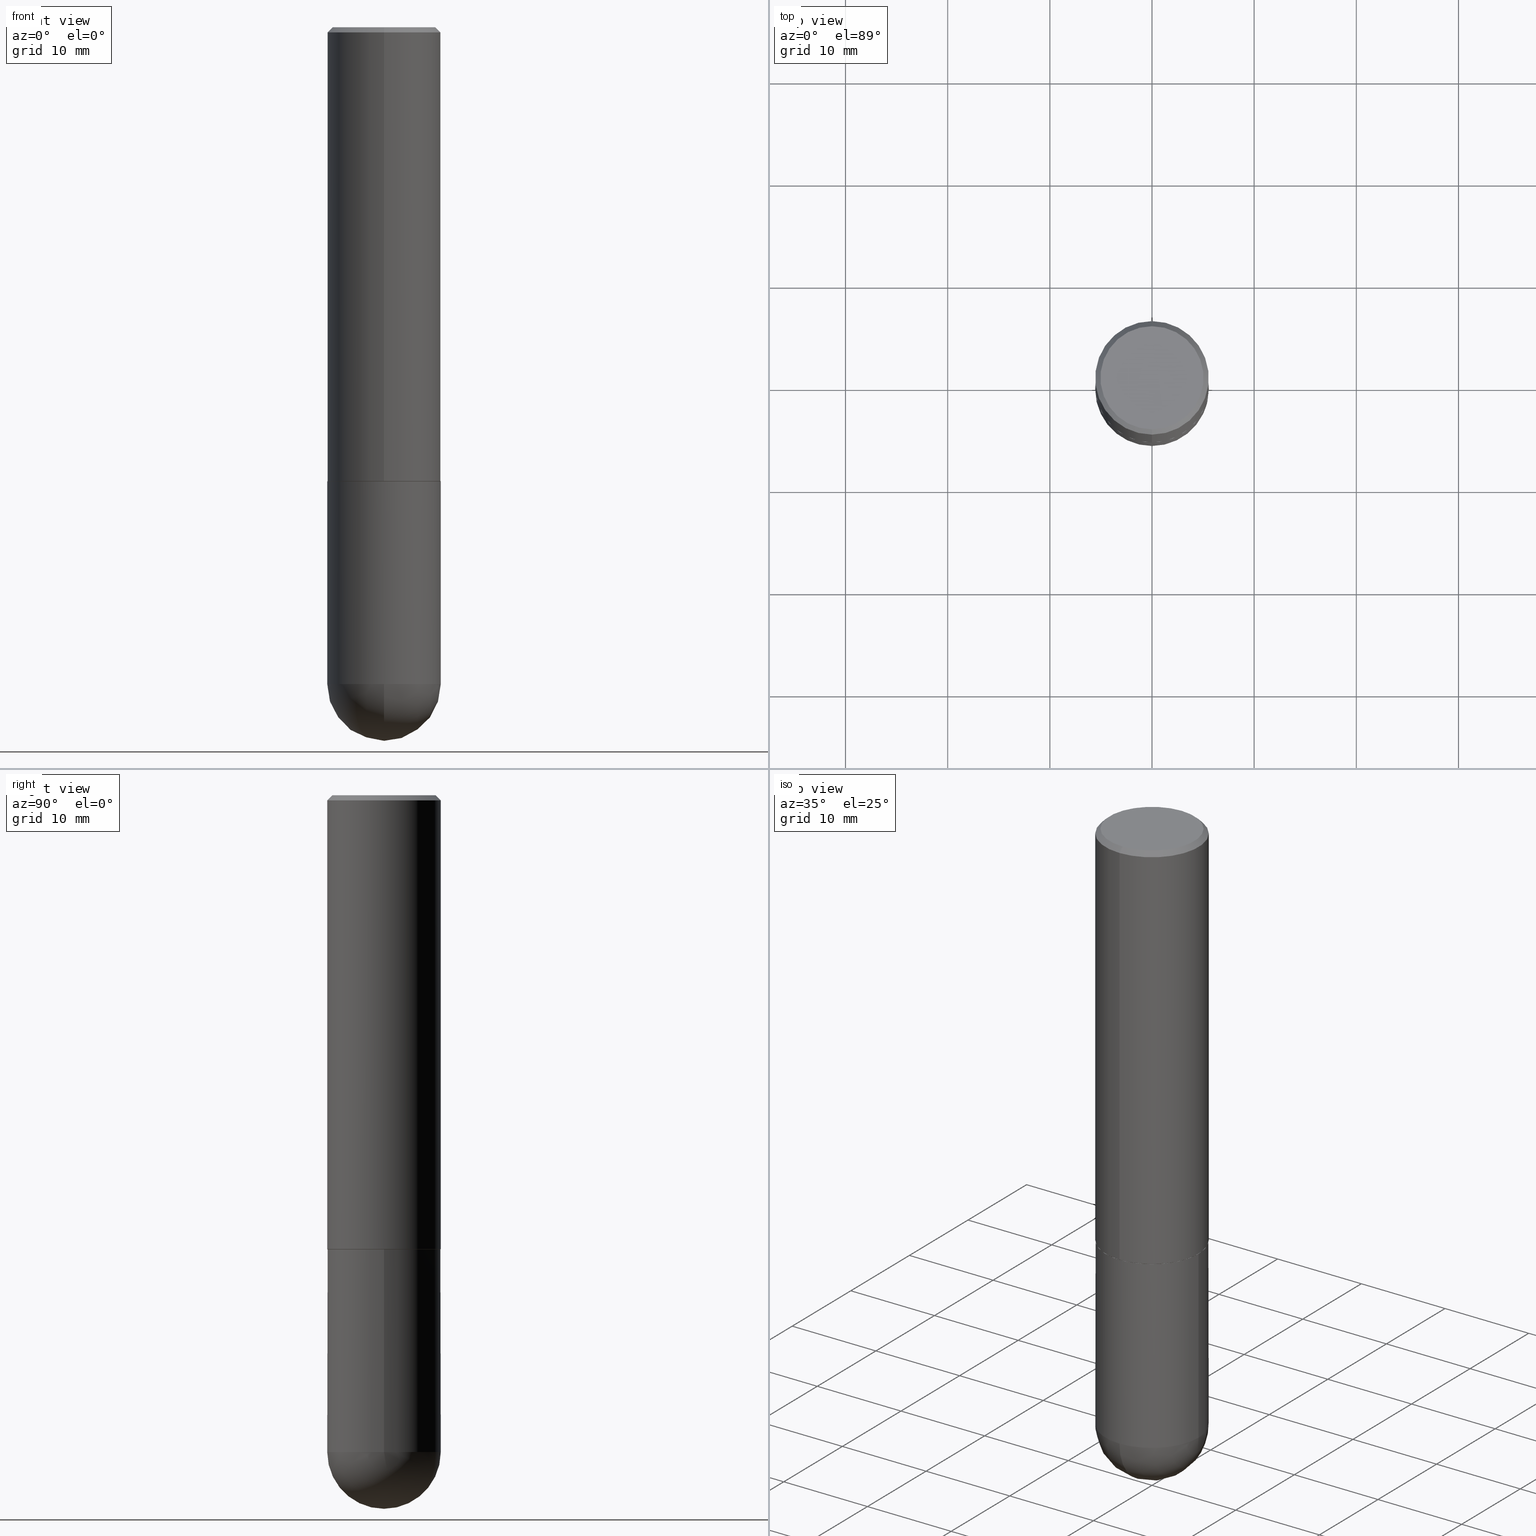
[diagram: canonical four-view strip — front | top / right | iso, engineering-drawing reading convention]
A machine part, canonical four-view strip (front | top / right | iso — engineering-drawing reading convention). The complete STEP part file that produces these views, byte-faithful:
ISO-10303-21;
HEADER;
FILE_DESCRIPTION (( 'STEP AP203' ),
    '1' );
FILE_NAME ('30498.STEP',
    '2024-02-21T16:39:10',
    ( '' ),
    ( '' ),
    'SwSTEP 2.0',
    'SolidWorks 2023',
    '' );
FILE_SCHEMA (( 'CONFIG_CONTROL_DESIGN' ));
ENDSEC;

DATA;
#1 = DIRECTION ( 'NONE',  ( -6.982962677686265922E-15, -1.000000000000000000, 3.492862791899308860E-15 ) ) ;
#2 = AXIS2_PLACEMENT_3D ( 'NONE', #355, #258, #34 ) ;
#3 = ORIENTED_EDGE ( 'NONE', *, *, #5, .F. ) ;
#4 = CARTESIAN_POINT ( 'NONE',  ( -0.2187499999999999445, 1.554312234475218762E-15, -1.076017050993260482E-29 ) ) ;
#5 = EDGE_CURVE ( 'NONE', #64, #94, #175, .T. ) ;
#6 = CARTESIAN_POINT ( 'NONE',  ( 1.554312234475219551E-15, 0.2187500000000000833, -7.635532579436483302E-16 ) ) ;
#7 = CARTESIAN_POINT ( 'NONE',  ( 0.000000000000000000, 0.000000000000000000, 0.000000000000000000 ) ) ;
#8 = AXIS2_PLACEMENT_3D ( 'NONE', #195, #20, #279 ) ;
#9 = DIRECTION ( 'NONE',  ( 1.000000000000000000, -6.982962677686267499E-15, 0.000000000000000000 ) ) ;
#10 = EDGE_CURVE ( 'NONE', #187, #123, #325, .T. ) ;
#11 = DATE_AND_TIME ( #119, #212 ) ;
#12 = MECHANICAL_CONTEXT ( 'NONE', #52, 'mechanical' ) ;
#13 = AXIS2_PLACEMENT_3D ( 'NONE', #350, #376, #281 ) ;
#14 = ADVANCED_FACE ( 'NONE', ( #171 ), #291, .T. ) ;
#15 = APPROVAL_ROLE ( '' ) ;
#16 = EDGE_LOOP ( 'NONE', ( #400, #342, #85, #397 ) ) ;
#17 = ORIENTED_EDGE ( 'NONE', *, *, #140, .T. ) ;
#18 = PERSON ( 'UNSPECIFIED', 'UNSPECIFIED', 'UNSPECIFIED', ('UNSPECIFIED'), ('UNSPECIFIED'), ('UNSPECIFIED') ) ;
#19 = VECTOR ( 'NONE', #24, 39.37007874015748143 ) ;
#20 = DIRECTION ( 'NONE',  ( -2.445468806185136597E-29, 3.491481338843145583E-15, 1.000000000000000000 ) ) ;
#21 = ORIENTED_EDGE ( 'NONE', *, *, #10, .T. ) ;
#22 = CARTESIAN_POINT ( 'NONE',  ( 0.2187499999999999445, -1.527523085743870449E-15, 1.066663669705360604E-29 ) ) ;
#23 = DIRECTION ( 'NONE',  ( -2.445468806185136597E-29, 3.491481338843145583E-15, 1.000000000000000000 ) ) ;
#24 = DIRECTION ( 'NONE',  ( -2.445468806185136877E-29, 3.491481338843145188E-15, 1.000000000000000000 ) ) ;
#25 = CARTESIAN_POINT ( 'NONE',  ( -1.500733937012521346E-15, -0.2187500000000000278, -0.01999999999999928571 ) ) ;
#26 = EDGE_CURVE ( 'NONE', #163, #367, #152, .T. ) ;
#27 = ORIENTED_EDGE ( 'NONE', *, *, #111, .T. ) ;
#28 = LINE ( 'NONE', #232, #289 ) ;
#29 = LINE ( 'NONE', #157, #245 ) ;
#30 = EDGE_LOOP ( 'NONE', ( #53, #158, #319, #322 ) ) ;
#31 = DIRECTION ( 'NONE',  ( -2.446133695730542157E-29, 3.490529179170962105E-15, 1.000000000000000000 ) ) ;
#32 = CARTESIAN_POINT ( 'NONE',  ( 4.278287833832718385E-29, -6.104935534370011908E-15, -1.748999999999999888 ) ) ;
#33 = EDGE_LOOP ( 'NONE', ( #284, #260 ) ) ;
#34 = DIRECTION ( 'NONE',  ( -6.982962677686265922E-15, -1.000000000000000000, 3.490529179170961710E-15 ) ) ;
#35 = EDGE_CURVE ( 'NONE', #163, #123, #29, .T. ) ;
#36 = CARTESIAN_POINT ( 'NONE',  ( 0.2187499999999999445, -9.001475326704980594E-15, -2.531250000000000000 ) ) ;
#37 = AXIS2_PLACEMENT_3D ( 'NONE', #338, #57, #185 ) ;
#38 = PERSON_AND_ORGANIZATION_ROLE ( 'design_owner' ) ;
#39 = DIRECTION ( 'NONE',  ( -2.446133695730542437E-29, 3.490529179170962105E-15, 1.000000000000000000 ) ) ;
#40 = DIRECTION ( 'NONE',  ( -6.982962677686265922E-15, -1.000000000000000000, 3.490529179170962105E-15 ) ) ;
#41 = CC_DESIGN_PERSON_AND_ORGANIZATION_ASSIGNMENT ( #243, #363, ( #390 ) ) ;
#42 = FACE_OUTER_BOUND ( 'NONE', #370, .T. ) ;
#43 = CARTESIAN_POINT ( 'NONE',  ( 4.279570410823988484E-29, -6.110092342975504671E-15, -1.750000000000000000 ) ) ;
#44 = PRODUCT_DEFINITION_FORMATION_WITH_SPECIFIED_SOURCE ( 'ANY', '', #216, .NOT_KNOWN. ) ;
#45 = EDGE_CURVE ( 'NONE', #346, #123, #299, .T. ) ;
#46 = PERSON_AND_ORGANIZATION ( #18, #395 ) ;
#47 = DIRECTION ( 'NONE',  ( 1.000000000000000000, -6.982962677686266711E-15, 4.876176775795935232E-29 ) ) ;
#48 = CALENDAR_DATE ( 2024, 21, 2 ) ;
#49 = APPROVAL_PERSON_ORGANIZATION ( #148, #240, #86 ) ;
#50 = PERSON_AND_ORGANIZATION_ROLE ( 'design_supplier' ) ;
#51 = ADVANCED_FACE ( 'NONE', ( #217 ), #233, .T. ) ;
#52 = APPLICATION_CONTEXT ( 'configuration controlled 3d designs of mechanical parts and assemblies' ) ;
#53 = ORIENTED_EDGE ( 'NONE', *, *, #111, .F. ) ;
#54 = COORDINATED_UNIVERSAL_TIME_OFFSET ( 5, 0, .BEHIND. ) ;
#55 = APPROVAL ( #109, 'UNSPECIFIED' ) ;
#56 = AXIS2_PLACEMENT_3D ( 'NONE', #186, #126, #70 ) ;
#57 = DIRECTION ( 'NONE',  ( -1.000000000000000000, 6.982962677686265922E-15, -4.883557194083112340E-29 ) ) ;
#58 = CC_DESIGN_PERSON_AND_ORGANIZATION_ASSIGNMENT ( #265, #38, ( #216 ) ) ;
#59 = DIRECTION ( 'NONE',  ( 4.937700262164542520E-15, 0.7071067811865443531, -0.7071067811865506814 ) ) ;
#60 = DESIGN_CONTEXT ( 'detailed design', #226, 'design' ) ;
#61 = ORIENTED_EDGE ( 'NONE', *, *, #203, .F. ) ;
#62 = CARTESIAN_POINT ( 'NONE',  ( 4.278287833832718385E-29, -6.104935534370011908E-15, -1.748999999999999888 ) ) ;
#63 = DIRECTION ( 'NONE',  ( 1.000000000000000000, -6.982962677686266711E-15, 4.876176775795935232E-29 ) ) ;
#64 = VERTEX_POINT ( 'NONE', #155 ) ;
#65 = DIRECTION ( 'NONE',  ( -2.446133695730542437E-29, 3.490529179170962105E-15, 1.000000000000000000 ) ) ;
#66 = AXIS2_PLACEMENT_3D ( 'NONE', #386, #383, #235 ) ;
#67 = DIRECTION ( 'NONE',  ( -2.445468806185136597E-29, 3.491481338843145583E-15, 1.000000000000000000 ) ) ;
#68 = ORIENTED_EDGE ( 'NONE', *, *, #117, .T. ) ;
#69 = CARTESIAN_POINT ( 'NONE',  ( 5.858973137742240763E-29, -9.311994507086761184E-15, -2.531250000000000000 ) ) ;
#70 = DIRECTION ( 'NONE',  ( 6.982962677686265922E-15, 1.000000000000000000, -3.492862791899308860E-15 ) ) ;
#71 = ORIENTED_EDGE ( 'NONE', *, *, #35, .T. ) ;
#72 = CARTESIAN_POINT ( 'NONE',  ( 4.280733967528448844E-29, -6.108426063549184275E-15, -1.750000000000000222 ) ) ;
#73 = DIRECTION ( 'NONE',  ( -2.445468806185136597E-29, 3.491481338843145583E-15, 1.000000000000000000 ) ) ;
#74 = ORIENTED_EDGE ( 'NONE', *, *, #5, .T. ) ;
#75 = CARTESIAN_POINT ( 'NONE',  ( 4.280733967528448844E-29, -6.108426063549184275E-15, -1.750000000000000222 ) ) ;
#76 = EDGE_CURVE ( 'NONE', #169, #361, #165, .T. ) ;
#77 = AXIS2_PLACEMENT_3D ( 'NONE', #321, #96, #247 ) ;
#78 = CC_DESIGN_APPROVAL ( #240, ( #44 ) ) ;
#79 = APPROVAL_ROLE ( '' ) ;
#80 = EDGE_CURVE ( 'NONE', #123, #346, #274, .T. ) ;
#81 = CC_DESIGN_DATE_AND_TIME_ASSIGNMENT ( #11, #268, ( #390 ) ) ;
#82 = PERSON_AND_ORGANIZATION_ROLE ( 'creator' ) ;
#83 = EDGE_LOOP ( 'NONE', ( #91, #21, #353, #272 ) ) ;
#84 = AXIS2_PLACEMENT_3D ( 'NONE', #292, #167, #142 ) ;
#85 = ORIENTED_EDGE ( 'NONE', *, *, #208, .T. ) ;
#86 = APPROVAL_ROLE ( '' ) ;
#87 = CALENDAR_DATE ( 2024, 21, 2 ) ;
#88 = AXIS2_PLACEMENT_3D ( 'NONE', #283, #344, #244 ) ;
#89 = APPROVAL_PERSON_ORGANIZATION ( #307, #354, #15 ) ;
#90 = DIRECTION ( 'NONE',  ( 5.024295867787803643E-15, 0.7071067811865135999, 0.7071067811865812125 ) ) ;
#91 = ORIENTED_EDGE ( 'NONE', *, *, #385, .T. ) ;
#92 = ADVANCED_FACE ( 'NONE', ( #189 ), #399, .F. ) ;
#93 = FACE_OUTER_BOUND ( 'NONE', #135, .T. ) ;
#94 = VERTEX_POINT ( 'NONE', #271 ) ;
#95 = DIRECTION ( 'NONE',  ( -2.446133695730542157E-29, 3.490529179170962105E-15, 1.000000000000000000 ) ) ;
#96 = DIRECTION ( 'NONE',  ( -2.445468806185136597E-29, 3.491481338843145583E-15, 1.000000000000000000 ) ) ;
#97 = ORIENTED_EDGE ( 'NONE', *, *, #308, .F. ) ;
#98 = CARTESIAN_POINT ( 'NONE',  ( 0.000000000000000000, 0.000000000000000000, 0.000000000000000000 ) ) ;
#99 = LOCAL_TIME ( 11, 39, 10.00000000000000000, #180 ) ;
#100 = ORIENTED_EDGE ( 'NONE', *, *, #131, .F. ) ;
#101 = CARTESIAN_POINT ( 'NONE',  ( 5.858973137742240763E-29, -9.311994507086761184E-15, -2.531250000000000000 ) ) ;
#102 = DIRECTION ( 'NONE',  ( -6.982962677686265922E-15, -1.000000000000000000, 3.492862791899308860E-15 ) ) ;
#103 = ORIENTED_EDGE ( 'NONE', *, *, #409, .T. ) ;
#104 = PLANE ( 'NONE',  #13 ) ;
#105 =( NAMED_UNIT ( * ) PLANE_ANGLE_UNIT ( ) SI_UNIT ( $, .RADIAN. ) );
#106 = VECTOR ( 'NONE', #213, 39.37007874015748143 ) ;
#107 = AXIS2_PLACEMENT_3D ( 'NONE', #230, #73, #198 ) ;
#108 = ADVANCED_FACE ( 'NONE', ( #93 ), #369, .T. ) ;
#109 = APPROVAL_STATUS ( 'not_yet_approved' ) ;
#110 = AXIS2_PLACEMENT_3D ( 'NONE', #7, #31, #255 ) ;
#111 = EDGE_CURVE ( 'NONE', #340, #187, #366, .T. ) ;
#112 = DIRECTION ( 'NONE',  ( -2.445468806185136597E-29, 3.491481338843145583E-15, 1.000000000000000000 ) ) ;
#113 = APPROVAL_STATUS ( 'not_yet_approved' ) ;
#114 = APPROVAL_DATE_TIME ( #362, #240 ) ;
#115 = EDGE_LOOP ( 'NONE', ( #17, #222, #3, #100, #68 ) ) ;
#116 = CONICAL_SURFACE ( 'NONE', #296, 0.2177499999999999991, 0.7853981633973970977 ) ;
#117 = EDGE_CURVE ( 'NONE', #183, #288, #204, .T. ) ;
#118 = DIMENSIONAL_EXPONENTS ( 1.000000000000000000, 0.000000000000000000, 0.000000000000000000, 0.000000000000000000, 0.000000000000000000, 0.000000000000000000, 0.000000000000000000 ) ;
#119 = CALENDAR_DATE ( 2024, 21, 2 ) ;
#120 = DIRECTION ( 'NONE',  ( -4.937700262164294818E-15, -0.7071067811865088260, 0.7071067811865862085 ) ) ;
#121 = UNCERTAINTY_MEASURE_WITH_UNIT (LENGTH_MEASURE( 1.000000000000000082E-05 ), #297, 'distance_accuracy_value', 'NONE');
#122 = EDGE_CURVE ( 'NONE', #367, #346, #168, .T. ) ;
#123 = VERTEX_POINT ( 'NONE', #220 ) ;
#124 = AXIS2_PLACEMENT_3D ( 'NONE', #403, #129, #1 ) ;
#125 = CONICAL_SURFACE ( 'NONE', #337, 0.2187499999999999445, 0.7853981633974472798 ) ;
#126 = DIRECTION ( 'NONE',  ( 2.446133695730542157E-29, -3.490529179170962105E-15, -1.000000000000000000 ) ) ;
#127 = ORIENTED_EDGE ( 'NONE', *, *, #26, .F. ) ;
#128 = DIRECTION ( 'NONE',  ( -2.446133695730542157E-29, 3.490529179170962105E-15, 1.000000000000000000 ) ) ;
#129 = DIRECTION ( 'NONE',  ( -2.446133695730542157E-29, 3.490529179170962105E-15, 1.000000000000000000 ) ) ;
#130 = PRODUCT_DEFINITION_SHAPE ( 'NONE', 'NONE',  #390 ) ;
#131 = EDGE_CURVE ( 'NONE', #183, #64, #313, .T. ) ;
#132 = ORIENTED_EDGE ( 'NONE', *, *, #122, .T. ) ;
#133 = CARTESIAN_POINT ( 'NONE',  ( -1.500733937012521346E-15, -0.2187500000000000278, -0.01999999999999928571 ) ) ;
#134 = CARTESIAN_POINT ( 'NONE',  ( 1.547206807117660550E-15, 0.2177499999999938651, -1.750000000000001110 ) ) ;
#135 = EDGE_LOOP ( 'NONE', ( #190, #277, #231, #411 ) ) ;
#136 = FACE_OUTER_BOUND ( 'NONE', #154, .T. ) ;
#137 = DIRECTION ( 'NONE',  ( -1.000000000000000000, 6.982962677686265922E-15, -4.883557194083112340E-29 ) ) ;
#138 = EDGE_LOOP ( 'NONE', ( #335, #166 ) ) ;
#139 = CARTESIAN_POINT ( 'NONE',  ( 4.280733967528448844E-29, -6.108426063549184275E-15, -1.750000000000000222 ) ) ;
#140 = EDGE_CURVE ( 'NONE', #288, #257, #159, .T. ) ;
#141 = DIRECTION ( 'NONE',  ( 1.000000000000000000, -6.982962677686267499E-15, 0.000000000000000000 ) ) ;
#142 = DIRECTION ( 'NONE',  ( -6.982962677686265922E-15, -1.000000000000000000, 3.763740060157423393E-15 ) ) ;
#143 = EDGE_CURVE ( 'NONE', #257, #254, #242, .T. ) ;
#144 = AXIS2_PLACEMENT_3D ( 'NONE', #72, #408, #40 ) ;
#145 = APPLICATION_PROTOCOL_DEFINITION ( 'international standard', 'config_control_design', 1994, #226 ) ;
#146 = CARTESIAN_POINT ( 'NONE',  ( 0.000000000000000000, 0.000000000000000000, 0.000000000000000000 ) ) ;
#147 = AXIS2_PLACEMENT_3D ( 'NONE', #75, #170, #327 ) ;
#148 = PERSON_AND_ORGANIZATION ( #18, #395 ) ;
#149 = PERSON_AND_ORGANIZATION ( #18, #395 ) ;
#150 = SECURITY_CLASSIFICATION_LEVEL ( 'unclassified' ) ;
#151 = SHAPE_DEFINITION_REPRESENTATION ( #130, #282 ) ;
#152 = CIRCLE ( 'NONE', #394, 0.1987499999999997324 ) ;
#153 = LOCAL_TIME ( 11, 39, 10.00000000000000000, #392 ) ;
#154 = EDGE_LOOP ( 'NONE', ( #61, #132, #199, #407 ) ) ;
#155 = CARTESIAN_POINT ( 'NONE',  ( 0.2187500000000000000, -7.637615428719375514E-15, -1.750000000000000000 ) ) ;
#156 = ORIENTED_EDGE ( 'NONE', *, *, #131, .T. ) ;
#157 = CARTESIAN_POINT ( 'NONE',  ( 1.527523085743870843E-15, 0.2187499999999998890, -0.02000000000000081574 ) ) ;
#158 = ORIENTED_EDGE ( 'NONE', *, *, #276, .T. ) ;
#159 = CIRCLE ( 'NONE', #263, 0.2187499999999999445 ) ;
#160 = FACE_OUTER_BOUND ( 'NONE', #83, .T. ) ;
#161 = CIRCLE ( 'NONE', #107, 0.2187499999999999445 ) ;
#162 = CARTESIAN_POINT ( 'NONE',  ( 6.190092915656127011E-29, -8.837812138946710888E-15, -2.531250000000000000 ) ) ;
#163 = VERTEX_POINT ( 'NONE', #377 ) ;
#164 = DIRECTION ( 'NONE',  ( -6.982962677686265922E-15, -1.000000000000000000, 3.490529179170962499E-15 ) ) ;
#165 = LINE ( 'NONE', #410, #178 ) ;
#166 = ORIENTED_EDGE ( 'NONE', *, *, #203, .T. ) ;
#167 = DIRECTION ( 'NONE',  ( -2.446133695730542157E-29, 3.490529179170962105E-15, 1.000000000000000000 ) ) ;
#168 = LINE ( 'NONE', #25, #106 ) ;
#169 = VERTEX_POINT ( 'NONE', #406 ) ;
#170 = DIRECTION ( 'NONE',  ( -2.446133695730542157E-29, 3.490529179170962105E-15, 1.000000000000000000 ) ) ;
#171 = FACE_OUTER_BOUND ( 'NONE', #115, .T. ) ;
#172 = DIRECTION ( 'NONE',  ( 6.982962677686265922E-15, 1.000000000000000000, 0.000000000000000000 ) ) ;
#173 = ADVANCED_FACE ( 'NONE', ( #252 ), #259, .T. ) ;
#174 = DIRECTION ( 'NONE',  ( -2.445468806185136597E-29, 3.491481338843145583E-15, 1.000000000000000000 ) ) ;
#175 = CIRCLE ( 'NONE', #269, 0.2187500000000000000 ) ;
#176 = VECTOR ( 'NONE', #39, 39.37007874015748143 ) ;
#177 =( LENGTH_UNIT ( ) NAMED_UNIT ( * ) SI_UNIT ( $, .METRE. ) );
#178 = VECTOR ( 'NONE', #120, 39.37007874015748143 ) ;
#179 = CC_DESIGN_APPROVAL ( #55, ( #390 ) ) ;
#180 = COORDINATED_UNIVERSAL_TIME_OFFSET ( 5, 0, .BEHIND. ) ;
#181 = EDGE_CURVE ( 'NONE', #187, #361, #192, .T. ) ;
#182 = CC_DESIGN_DATE_AND_TIME_ASSIGNMENT ( #239, #304, ( #267 ) ) ;
#183 = VERTEX_POINT ( 'NONE', #36 ) ;
#184 = APPROVAL_STATUS ( 'not_yet_approved' ) ;
#185 = DIRECTION ( 'NONE',  ( 6.982962677686265922E-15, 1.000000000000000000, -2.497689594207324005E-15 ) ) ;
#186 = CARTESIAN_POINT ( 'NONE',  ( 4.892267391461096505E-31, -6.981058358341942304E-17, -0.02000000000000005246 ) ) ;
#187 = VERTEX_POINT ( 'NONE', #351 ) ;
#188 = DIRECTION ( 'NONE',  ( -2.446133695730542157E-29, 3.490529179170962105E-15, 1.000000000000000000 ) ) ;
#189 = FACE_OUTER_BOUND ( 'NONE', #138, .T. ) ;
#190 = ORIENTED_EDGE ( 'NONE', *, *, #360, .F. ) ;
#191 = CARTESIAN_POINT ( 'NONE',  ( 1.527523085743931191E-15, 0.2187499999999910072, -2.531250000000000444 ) ) ;
#192 = CIRCLE ( 'NONE', #223, 0.2187500000000002220 ) ;
#193 = ORIENTED_EDGE ( 'NONE', *, *, #76, .F. ) ;
#194 = LINE ( 'NONE', #4, #19 ) ;
#195 = CARTESIAN_POINT ( 'NONE',  ( 6.190092915656127011E-29, -8.837812138946710888E-15, -2.531250000000000000 ) ) ;
#196 = EDGE_LOOP ( 'NONE', ( #74, #103 ) ) ;
#197 = CYLINDRICAL_SURFACE ( 'NONE', #110, 0.2187500000000000833 ) ;
#198 = DIRECTION ( 'NONE',  ( 1.000000000000000000, -6.982962677686265133E-15, 0.000000000000000000 ) ) ;
#199 = ORIENTED_EDGE ( 'NONE', *, *, #45, .T. ) ;
#200 = DIRECTION ( 'NONE',  ( -2.446133695730542157E-29, 3.490529179170962105E-15, 1.000000000000000000 ) ) ;
#201 = CIRCLE ( 'NONE', #84, 0.2177499999999999991 ) ;
#202 = EDGE_CURVE ( 'NONE', #254, #183, #161, .T. ) ;
#203 = EDGE_CURVE ( 'NONE', #367, #163, #275, .T. ) ;
#204 = CIRCLE ( 'NONE', #77, 0.2187499999999999445 ) ;
#205 = CIRCLE ( 'NONE', #234, 0.2177499999999999991 ) ;
#206 = ADVANCED_FACE ( 'NONE', ( #229 ), #285, .T. ) ;
#207 =( NAMED_UNIT ( * ) SI_UNIT ( $, .STERADIAN. ) SOLID_ANGLE_UNIT ( ) );
#208 = EDGE_CURVE ( 'NONE', #361, #346, #28, .T. ) ;
#209 = CONICAL_SURFACE ( 'NONE', #147, 0.2177499999999999991, 0.7853981633973970977 ) ;
#210 = DATE_AND_TIME ( #48, #153 ) ;
#211 = PERSON_AND_ORGANIZATION ( #18, #395 ) ;
#212 = LOCAL_TIME ( 11, 39, 10.00000000000000000, #54 ) ;
#213 = DIRECTION ( 'NONE',  ( -4.851104656540958753E-15, -0.7071067811865492381, -0.7071067811865457964 ) ) ;
#214 = EDGE_LOOP ( 'NONE', ( #97, #316, #218, #305 ) ) ;
#215 = DIRECTION ( 'NONE',  ( 6.982962677686265922E-15, 1.000000000000000000, -3.492862791899308860E-15 ) ) ;
#216 = PRODUCT ( '30498', '30498', '', ( #12 ) ) ;
#217 = FACE_OUTER_BOUND ( 'NONE', #270, .T. ) ;
#218 = ORIENTED_EDGE ( 'NONE', *, *, #117, .F. ) ;
#219 = FACE_OUTER_BOUND ( 'NONE', #30, .T. ) ;
#220 = CARTESIAN_POINT ( 'NONE',  ( 1.527523085743870843E-15, 0.2187499999999998890, -0.02000000000000081574 ) ) ;
#221 = VECTOR ( 'NONE', #90, 39.37007874015748854 ) ;
#222 = ORIENTED_EDGE ( 'NONE', *, *, #241, .T. ) ;
#223 = AXIS2_PLACEMENT_3D ( 'NONE', #32, #309, #324 ) ;
#224 = DIRECTION ( 'NONE',  ( 2.446133695730542157E-29, -3.490529179170962105E-15, -1.000000000000000000 ) ) ;
#225 = LOCAL_TIME ( 11, 39, 10.00000000000000000, #298 ) ;
#226 = APPLICATION_CONTEXT ( 'configuration controlled 3d designs of mechanical parts and assemblies' ) ;
#227 = DIRECTION ( 'NONE',  ( -6.982962677686265922E-15, -1.000000000000000000, 3.490529179170961710E-15 ) ) ;
#228 = ORIENTED_EDGE ( 'NONE', *, *, #143, .T. ) ;
#229 = FACE_OUTER_BOUND ( 'NONE', #16, .T. ) ;
#230 = CARTESIAN_POINT ( 'NONE',  ( 6.190092915656127011E-29, -8.837812138946710888E-15, -2.531250000000000000 ) ) ;
#231 = ORIENTED_EDGE ( 'NONE', *, *, #143, .F. ) ;
#232 = CARTESIAN_POINT ( 'NONE',  ( -1.527523085743871237E-15, -0.2187500000000000833, 7.635532579436483302E-16 ) ) ;
#233 = CONICAL_SURFACE ( 'NONE', #56, 0.2187499999999999445, 0.7853981633974472798 ) ;
#234 = AXIS2_PLACEMENT_3D ( 'NONE', #250, #200, #412 ) ;
#235 = DIRECTION ( 'NONE',  ( 1.000000000000000000, 0.000000000000000000, 0.000000000000000000 ) ) ;
#236 = PERSON_AND_ORGANIZATION ( #18, #395 ) ;
#237 = CLOSED_SHELL ( 'NONE', ( #14, #108, #173, #251, #393 ) ) ;
#238 = ADVANCED_FACE ( 'NONE', ( #219 ), #116, .T. ) ;
#239 = DATE_AND_TIME ( #334, #329 ) ;
#240 = APPROVAL ( #184, 'UNSPECIFIED' ) ;
#241 = EDGE_CURVE ( 'NONE', #257, #94, #194, .T. ) ;
#242 = CIRCLE ( 'NONE', #8, 0.2187499999999999445 ) ;
#243 = PERSON_AND_ORGANIZATION ( #18, #395 ) ;
#244 = DIRECTION ( 'NONE',  ( 6.982962677686265922E-15, 1.000000000000000000, -3.490529179170962105E-15 ) ) ;
#245 = VECTOR ( 'NONE', #59, 39.37007874015748143 ) ;
#246 = ORIENTED_EDGE ( 'NONE', *, *, #80, .T. ) ;
#247 = DIRECTION ( 'NONE',  ( 1.000000000000000000, -6.982962677686265133E-15, 0.000000000000000000 ) ) ;
#248 = EDGE_LOOP ( 'NONE', ( #303, #27, #349, #193 ) ) ;
#249 = CC_DESIGN_PERSON_AND_ORGANIZATION_ASSIGNMENT ( #149, #82, ( #44 ) ) ;
#250 = CARTESIAN_POINT ( 'NONE',  ( 4.280733967528448844E-29, -6.108426063549184275E-15, -1.750000000000000222 ) ) ;
#251 = ADVANCED_FACE ( 'NONE', ( #380 ), #104, .F. ) ;
#252 = FACE_OUTER_BOUND ( 'NONE', #214, .T. ) ;
#253 = CC_DESIGN_PERSON_AND_ORGANIZATION_ASSIGNMENT ( #46, #332, ( #267 ) ) ;
#254 = VERTEX_POINT ( 'NONE', #261 ) ;
#255 = DIRECTION ( 'NONE',  ( -6.982962677686265922E-15, -1.000000000000000000, 3.490529179170962499E-15 ) ) ;
#256 = DIRECTION ( 'NONE',  ( -2.446133695730542157E-29, 3.490529179170962105E-15, 1.000000000000000000 ) ) ;
#257 = VERTEX_POINT ( 'NONE', #379 ) ;
#258 = DIRECTION ( 'NONE',  ( -2.446133695730542157E-29, 3.490529179170962105E-15, 1.000000000000000000 ) ) ;
#259 = SPHERICAL_SURFACE ( 'NONE', #37, 0.2187500000000001943 ) ;
#260 = ORIENTED_EDGE ( 'NONE', *, *, #276, .F. ) ;
#261 = CARTESIAN_POINT ( 'NONE',  ( -1.554312234475159203E-15, -0.2187500000000091871, -2.531249999999999556 ) ) ;
#262 = FACE_OUTER_BOUND ( 'NONE', #248, .T. ) ;
#263 = AXIS2_PLACEMENT_3D ( 'NONE', #162, #67, #310 ) ;
#264 = AXIS2_PLACEMENT_3D ( 'NONE', #101, #278, #172 ) ;
#265 = PERSON_AND_ORGANIZATION ( #18, #395 ) ;
#266 = ADVANCED_FACE ( 'NONE', ( #262 ), #209, .T. ) ;
#267 = SECURITY_CLASSIFICATION ( '', '', #150 ) ;
#268 = DATE_TIME_ROLE ( 'creation_date' ) ;
#269 = AXIS2_PLACEMENT_3D ( 'NONE', #311, #23, #141 ) ;
#270 = EDGE_LOOP ( 'NONE', ( #378, #127, #71, #246 ) ) ;
#271 = CARTESIAN_POINT ( 'NONE',  ( -0.2187500000000000000, -5.919640006485889806E-15, -1.750000000000000000 ) ) ;
#272 = ORIENTED_EDGE ( 'NONE', *, *, #208, .F. ) ;
#273 = CARTESIAN_POINT ( 'NONE',  ( 4.892267391461096505E-31, -6.981058358341942304E-17, -0.02000000000000005246 ) ) ;
#274 = CIRCLE ( 'NONE', #381, 0.2187499999999999445 ) ;
#275 = CIRCLE ( 'NONE', #2, 0.1987499999999997324 ) ;
#276 = EDGE_CURVE ( 'NONE', #340, #169, #205, .T. ) ;
#277 = ORIENTED_EDGE ( 'NONE', *, *, #308, .T. ) ;
#278 = DIRECTION ( 'NONE',  ( 1.000000000000000000, -6.982962677686265922E-15, 4.883557194083112340E-29 ) ) ;
#279 = DIRECTION ( 'NONE',  ( 1.000000000000000000, -6.982962677686265133E-15, 0.000000000000000000 ) ) ;
#280 = ORIENTED_EDGE ( 'NONE', *, *, #202, .T. ) ;
#281 = DIRECTION ( 'NONE',  ( -1.000000000000000000, 6.982962677686265922E-15, -4.876176775795935793E-29 ) ) ;
#282 = ADVANCED_BREP_SHAPE_REPRESENTATION ( '30498', ( #391, #384, #66 ), #300 ) ;
#283 = CARTESIAN_POINT ( 'NONE',  ( 1.387863832190143458E-15, 0.1987499999999997324, -5.828559704850403027E-16 ) ) ;
#284 = ORIENTED_EDGE ( 'NONE', *, *, #372, .F. ) ;
#285 = CYLINDRICAL_SURFACE ( 'NONE', #364, 0.2187500000000000833 ) ;
#286 = DIRECTION ( 'NONE',  ( -2.445468806185136877E-29, 3.491481338843145188E-15, 1.000000000000000000 ) ) ;
#287 = AXIS2_PLACEMENT_3D ( 'NONE', #339, #137, #348 ) ;
#288 = VERTEX_POINT ( 'NONE', #191 ) ;
#289 = VECTOR ( 'NONE', #65, 39.37007874015748143 ) ;
#290 = DIRECTION ( 'NONE',  ( -7.105427357601001070E-15, -1.000000000000000000, 0.000000000000000000 ) ) ;
#291 = CYLINDRICAL_SURFACE ( 'NONE', #387, 0.2187499999999999445 ) ;
#292 = CARTESIAN_POINT ( 'NONE',  ( 4.280733967528448844E-29, -6.108426063549184275E-15, -1.750000000000000222 ) ) ;
#293 = CARTESIAN_POINT ( 'NONE',  ( 0.000000000000000000, 0.000000000000000000, 0.000000000000000000 ) ) ;
#294 = ADVANCED_FACE ( 'NONE', ( #136 ), #125, .T. ) ;
#295 = DIRECTION ( 'NONE',  ( -2.445468806185136597E-29, 3.491481338843145583E-15, 1.000000000000000000 ) ) ;
#296 = AXIS2_PLACEMENT_3D ( 'NONE', #139, #128, #405 ) ;
#297 =( CONVERSION_BASED_UNIT ( 'INCH', #328 ) LENGTH_UNIT ( ) NAMED_UNIT ( #118 ) );
#298 = COORDINATED_UNIVERSAL_TIME_OFFSET ( 5, 0, .BEHIND. ) ;
#299 = CIRCLE ( 'NONE', #124, 0.2187499999999999445 ) ;
#300 =( GEOMETRIC_REPRESENTATION_CONTEXT ( 3 ) GLOBAL_UNCERTAINTY_ASSIGNED_CONTEXT ( ( #121 ) ) GLOBAL_UNIT_ASSIGNED_CONTEXT ( ( #297, #105, #207 ) ) REPRESENTATION_CONTEXT ( 'NONE', 'WORKASPACE' ) );
#301 = CC_DESIGN_SECURITY_CLASSIFICATION ( #267, ( #44 ) ) ;
#302 = COORDINATED_UNIVERSAL_TIME_OFFSET ( 5, 0, .BEHIND. ) ;
#303 = ORIENTED_EDGE ( 'NONE', *, *, #372, .T. ) ;
#304 = DATE_TIME_ROLE ( 'classification_date' ) ;
#305 = ORIENTED_EDGE ( 'NONE', *, *, #202, .F. ) ;
#306 = ADVANCED_FACE ( 'NONE', ( #320 ), #317, .F. ) ;
#307 = PERSON_AND_ORGANIZATION ( #18, #395 ) ;
#308 = EDGE_CURVE ( 'NONE', #375, #254, #326, .T. ) ;
#309 = DIRECTION ( 'NONE',  ( -2.446133695730542157E-29, 3.490529179170962105E-15, 1.000000000000000000 ) ) ;
#310 = DIRECTION ( 'NONE',  ( 1.000000000000000000, -6.982962677686265133E-15, 0.000000000000000000 ) ) ;
#311 = CARTESIAN_POINT ( 'NONE',  ( 4.279570410823988484E-29, -6.110092342975504671E-15, -1.750000000000000000 ) ) ;
#312 = DIRECTION ( 'NONE',  ( -6.982962677686265922E-15, -1.000000000000000000, 3.746534391310985612E-15 ) ) ;
#313 = LINE ( 'NONE', #22, #333 ) ;
#314 = PRODUCT_RELATED_PRODUCT_CATEGORY ( 'detail', '', ( #216 ) ) ;
#315 = CIRCLE ( 'NONE', #359, 0.2187500000000002220 ) ;
#316 = ORIENTED_EDGE ( 'NONE', *, *, #360, .T. ) ;
#317 = PLANE ( 'NONE',  #144 ) ;
#318 = CARTESIAN_POINT ( 'NONE',  ( -5.424874055151809807E-45, 7.741065509168630916E-31, 2.217734077503748917E-16 ) ) ;
#319 = ORIENTED_EDGE ( 'NONE', *, *, #76, .T. ) ;
#320 = FACE_OUTER_BOUND ( 'NONE', #33, .T. ) ;
#321 = CARTESIAN_POINT ( 'NONE',  ( 6.190092915656127011E-29, -8.837812138946710888E-15, -2.531250000000000000 ) ) ;
#322 = ORIENTED_EDGE ( 'NONE', *, *, #181, .F. ) ;
#323 = CARTESIAN_POINT ( 'NONE',  ( -1.527523085743829428E-15, -0.2187500000000063283, -1.748999999999999000 ) ) ;
#324 = DIRECTION ( 'NONE',  ( -6.982962677686265922E-15, -1.000000000000000000, 3.746534391310985612E-15 ) ) ;
#325 = LINE ( 'NONE', #6, #176 ) ;
#326 = CIRCLE ( 'NONE', #382, 0.2187500000000001943 ) ;
#327 = DIRECTION ( 'NONE',  ( -6.982962677686265922E-15, -1.000000000000000000, 3.763740060157423393E-15 ) ) ;
#328 = LENGTH_MEASURE_WITH_UNIT ( LENGTH_MEASURE( 0.02539999999999999897 ), #177 );
#329 = LOCAL_TIME ( 11, 39, 10.00000000000000000, #302 ) ;
#330 = CYLINDRICAL_SURFACE ( 'NONE', #402, 0.2187499999999999445 ) ;
#331 = APPLICATION_PROTOCOL_DEFINITION ( 'international standard', 'config_control_design', 1994, #52 ) ;
#332 = PERSON_AND_ORGANIZATION_ROLE ( 'classification_officer' ) ;
#333 = VECTOR ( 'NONE', #286, 39.37007874015748143 ) ;
#334 = CALENDAR_DATE ( 2024, 21, 2 ) ;
#335 = ORIENTED_EDGE ( 'NONE', *, *, #26, .T. ) ;
#336 = CALENDAR_DATE ( 2024, 21, 2 ) ;
#337 = AXIS2_PLACEMENT_3D ( 'NONE', #368, #224, #215 ) ;
#338 = CARTESIAN_POINT ( 'NONE',  ( 5.858973137742240763E-29, -9.311994507086761184E-15, -2.531250000000000000 ) ) ;
#339 = CARTESIAN_POINT ( 'NONE',  ( 5.858973137742240763E-29, -9.311994507086761184E-15, -2.531250000000000000 ) ) ;
#340 = VERTEX_POINT ( 'NONE', #343 ) ;
#341 = CARTESIAN_POINT ( 'NONE',  ( 6.403272820383139972E-29, -1.006236147559302482E-14, -2.750000000000000000 ) ) ;
#342 = ORIENTED_EDGE ( 'NONE', *, *, #181, .T. ) ;
#343 = CARTESIAN_POINT ( 'NONE',  ( 1.550759520796462040E-15, 0.2177499999999938651, -1.750000000000001110 ) ) ;
#344 = DIRECTION ( 'NONE',  ( 2.446133695730541876E-29, -3.490529179170962105E-15, -1.000000000000000000 ) ) ;
#345 = CIRCLE ( 'NONE', #264, 0.2187500000000001943 ) ;
#346 = VERTEX_POINT ( 'NONE', #133 ) ;
#347 = DIRECTION ( 'NONE',  ( -1.000000000000000000, 7.105427357601001070E-15, -4.926315508542082329E-29 ) ) ;
#348 = DIRECTION ( 'NONE',  ( 6.982962677686265922E-15, 1.000000000000000000, -2.497689594207324005E-15 ) ) ;
#349 = ORIENTED_EDGE ( 'NONE', *, *, #385, .F. ) ;
#350 = CARTESIAN_POINT ( 'NONE',  ( 1.527523085743913244E-15, 0.2187499999999938660, -1.750000000000000666 ) ) ;
#351 = CARTESIAN_POINT ( 'NONE',  ( 1.554312234475241442E-15, 0.2187499999999940881, -1.749000000000000554 ) ) ;
#352 = ADVANCED_FACE ( 'NONE', ( #160 ), #197, .T. ) ;
#353 = ORIENTED_EDGE ( 'NONE', *, *, #45, .F. ) ;
#354 = APPROVAL ( #113, 'UNSPECIFIED' ) ;
#355 = CARTESIAN_POINT ( 'NONE',  ( -5.424874055151809807E-45, 7.741065509168630916E-31, 2.217734077503748917E-16 ) ) ;
#356 = AXIS2_PLACEMENT_3D ( 'NONE', #43, #174, #9 ) ;
#357 = APPROVAL_DATE_TIME ( #210, #354 ) ;
#358 = DATE_AND_TIME ( #336, #225 ) ;
#359 = AXIS2_PLACEMENT_3D ( 'NONE', #62, #188, #312 ) ;
#360 = EDGE_CURVE ( 'NONE', #375, #288, #345, .T. ) ;
#361 = VERTEX_POINT ( 'NONE', #323 ) ;
#362 = DATE_AND_TIME ( #87, #99 ) ;
#363 = PERSON_AND_ORGANIZATION_ROLE ( 'creator' ) ;
#364 = AXIS2_PLACEMENT_3D ( 'NONE', #98, #95, #164 ) ;
#365 = ORIENTED_EDGE ( 'NONE', *, *, #241, .F. ) ;
#366 = LINE ( 'NONE', #134, #221 ) ;
#367 = VERTEX_POINT ( 'NONE', #371 ) ;
#368 = CARTESIAN_POINT ( 'NONE',  ( 4.892267391461096505E-31, -6.981058358341942304E-17, -0.02000000000000005246 ) ) ;
#369 = SPHERICAL_SURFACE ( 'NONE', #287, 0.2187500000000001943 ) ;
#370 = EDGE_LOOP ( 'NONE', ( #365, #228, #280, #156, #404 ) ) ;
#371 = CARTESIAN_POINT ( 'NONE',  ( -1.432128957034805817E-15, -0.1987499999999997324, 9.155160821106029236E-16 ) ) ;
#372 = EDGE_CURVE ( 'NONE', #169, #340, #201, .T. ) ;
#373 = DIRECTION ( 'NONE',  ( -2.446133695730542157E-29, 3.490529179170962105E-15, 1.000000000000000000 ) ) ;
#374 = CC_DESIGN_APPROVAL ( #354, ( #267 ) ) ;
#375 = VERTEX_POINT ( 'NONE', #341 ) ;
#376 = DIRECTION ( 'NONE',  ( 2.438088387897960049E-29, -3.491481338843145188E-15, -1.000000000000000000 ) ) ;
#377 = CARTESIAN_POINT ( 'NONE',  ( 1.457693458967007150E-15, 0.1987499999999997324, -4.719692666098528938E-16 ) ) ;
#378 = ORIENTED_EDGE ( 'NONE', *, *, #122, .F. ) ;
#379 = CARTESIAN_POINT ( 'NONE',  ( -0.2187499999999999445, -5.919640006485891384E-15, -2.531250000000000000 ) ) ;
#380 = FACE_OUTER_BOUND ( 'NONE', #196, .T. ) ;
#381 = AXIS2_PLACEMENT_3D ( 'NONE', #273, #373, #102 ) ;
#382 = AXIS2_PLACEMENT_3D ( 'NONE', #69, #347, #290 ) ;
#383 = DIRECTION ( 'NONE',  ( 0.000000000000000000, 0.000000000000000000, 1.000000000000000000 ) ) ;
#384 = MANIFOLD_SOLID_BREP ( 'Body-Move/Copy2[2]', #401 ) ;
#385 = EDGE_CURVE ( 'NONE', #361, #187, #315, .T. ) ;
#386 = CARTESIAN_POINT ( 'NONE',  ( 0.000000000000000000, 0.000000000000000000, 0.000000000000000000 ) ) ;
#387 = AXIS2_PLACEMENT_3D ( 'NONE', #293, #295, #63 ) ;
#388 = APPROVAL_PERSON_ORGANIZATION ( #236, #55, #79 ) ;
#389 = CC_DESIGN_PERSON_AND_ORGANIZATION_ASSIGNMENT ( #211, #50, ( #44 ) ) ;
#390 = PRODUCT_DEFINITION ( 'UNKNOWN', '', #44, #60 ) ;
#391 = MANIFOLD_SOLID_BREP ( 'Body-Move/Copy2[1]', #237 ) ;
#392 = COORDINATED_UNIVERSAL_TIME_OFFSET ( 5, 0, .BEHIND. ) ;
#393 = ADVANCED_FACE ( 'NONE', ( #42 ), #330, .T. ) ;
#394 = AXIS2_PLACEMENT_3D ( 'NONE', #318, #256, #227 ) ;
#395 = ORGANIZATION ( 'UNSPECIFIED', 'UNSPECIFIED', '' ) ;
#396 = CIRCLE ( 'NONE', #356, 0.2187500000000000000 ) ;
#397 = ORIENTED_EDGE ( 'NONE', *, *, #80, .F. ) ;
#398 = APPROVAL_DATE_TIME ( #358, #55 ) ;
#399 = PLANE ( 'NONE',  #88 ) ;
#400 = ORIENTED_EDGE ( 'NONE', *, *, #10, .F. ) ;
#401 = CLOSED_SHELL ( 'NONE', ( #266, #352, #294, #51, #206, #238, #306, #92 ) ) ;
#402 = AXIS2_PLACEMENT_3D ( 'NONE', #146, #112, #47 ) ;
#403 = CARTESIAN_POINT ( 'NONE',  ( 4.892267391461096505E-31, -6.981058358341942304E-17, -0.02000000000000005246 ) ) ;
#404 = ORIENTED_EDGE ( 'NONE', *, *, #409, .F. ) ;
#405 = DIRECTION ( 'NONE',  ( -6.982962677686265922E-15, -1.000000000000000000, 3.763740060157423393E-15 ) ) ;
#406 = CARTESIAN_POINT ( 'NONE',  ( -1.520540123066141639E-15, -0.2177500000000061053, -1.749999999999999334 ) ) ;
#407 = ORIENTED_EDGE ( 'NONE', *, *, #35, .F. ) ;
#408 = DIRECTION ( 'NONE',  ( -2.446133695730541876E-29, 3.490529179170962105E-15, 1.000000000000000000 ) ) ;
#409 = EDGE_CURVE ( 'NONE', #94, #64, #396, .T. ) ;
#410 = CARTESIAN_POINT ( 'NONE',  ( -1.520540123066141639E-15, -0.2177500000000061053, -1.749999999999999334 ) ) ;
#411 = ORIENTED_EDGE ( 'NONE', *, *, #140, .F. ) ;
#412 = DIRECTION ( 'NONE',  ( -6.982962677686265922E-15, -1.000000000000000000, 3.763740060157423393E-15 ) ) ;
ENDSEC;
END-ISO-10303-21;
